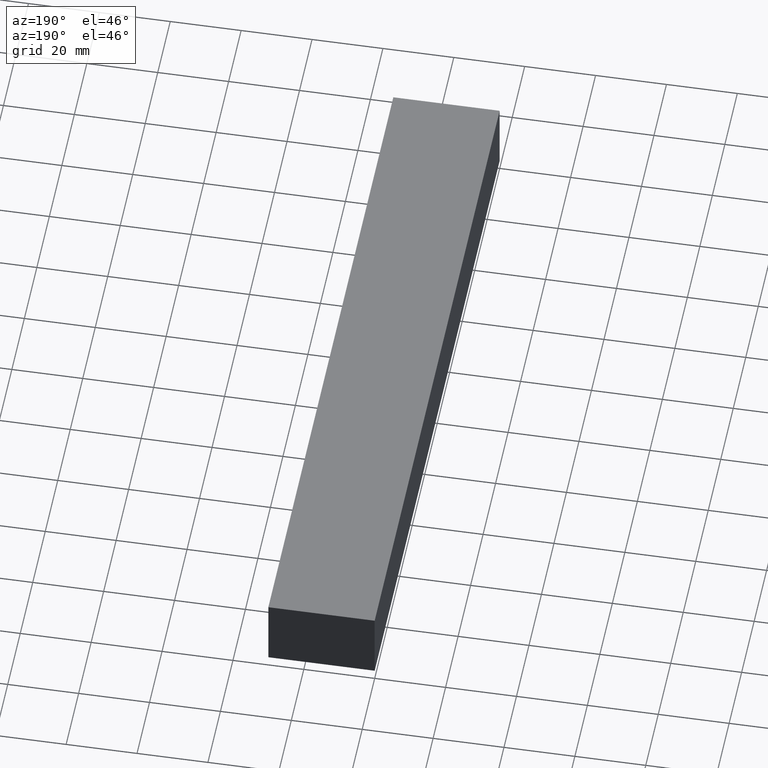
[diagram: clean part render]
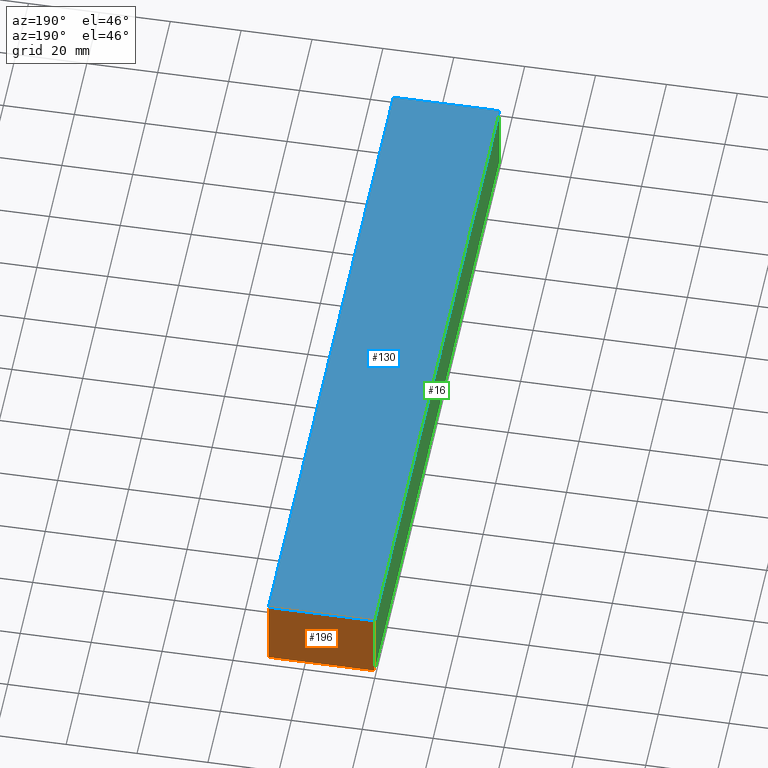
[diagram: same view with three faces highlighted in distinct colors, each labeled with its STEP entity id]
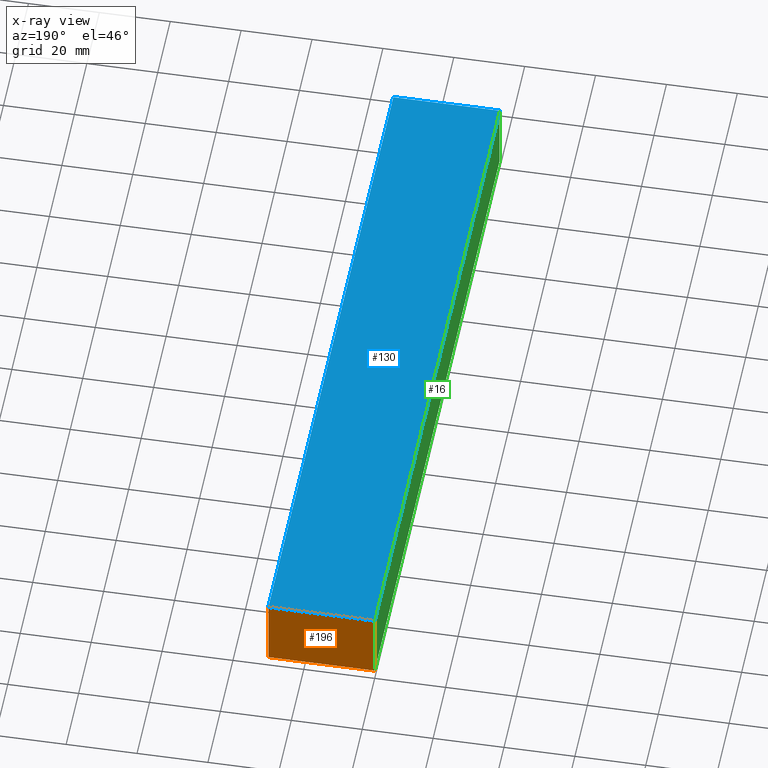
[diagram: x-ray of the same camera — body ghosted, the three highlighted faces saturated]
A machine part, auxiliary view with three faces highlighted in distinct colors.
The next image is the same camera in x-ray (body ghosted, the three faces saturated) — at least one of them is partly hidden behind the body in this view.
Their STEP definitions:

[orange] entity #196 — the highlighted planar face has unit normal (0, 1, 0).
#1 = DIRECTION ( 'NONE',  ( 0.0000000000000000000, 0.0000000000000000000, 1.000000000000000000 ) ) ;
#17 = VERTEX_POINT ( 'NONE', #234 ) ;
#19 = DIRECTION ( 'NONE',  ( 0.0000000000000000000, 1.000000000000000000, 0.0000000000000000000 ) ) ;
#21 = VERTEX_POINT ( 'NONE', #97 ) ;
#24 = ORIENTED_EDGE ( 'NONE', *, *, #200, .F. ) ;
#41 = VECTOR ( 'NONE', #185, 1000.000000000000000 ) ;
#51 = DIRECTION ( 'NONE',  ( -1.000000000000000000, 0.0000000000000000000, 0.0000000000000000000 ) ) ;
#57 = DIRECTION ( 'NONE',  ( 0.0000000000000000000, 0.0000000000000000000, 1.000000000000000000 ) ) ;
#90 = VECTOR ( 'NONE', #51, 1000.000000000000000 ) ;
#91 = LINE ( 'NONE', #150, #41 ) ;
#97 = CARTESIAN_POINT ( 'NONE',  ( 30.00000000000000000, 200.0000000000000000, 10.00000000000000000 ) ) ;
#98 = VERTEX_POINT ( 'NONE', #105 ) ;
#104 = FACE_OUTER_BOUND ( 'NONE', #224, .T. ) ;
#105 = CARTESIAN_POINT ( 'NONE',  ( 0.0000000000000000000, 200.0000000000000000, 10.00000000000000000 ) ) ;
#118 = CARTESIAN_POINT ( 'NONE',  ( 30.00000000000000000, 200.0000000000000000, -10.00000000000000000 ) ) ;
#129 = LINE ( 'NONE', #197, #142 ) ;
#139 = CARTESIAN_POINT ( 'NONE',  ( 0.0000000000000000000, 200.0000000000000000, -10.00000000000000000 ) ) ;
#142 = VECTOR ( 'NONE', #198, 1000.000000000000000 ) ;
#149 = ORIENTED_EDGE ( 'NONE', *, *, #217, .T. ) ;
#150 = CARTESIAN_POINT ( 'NONE',  ( 30.00000000000000000, 200.0000000000000000, 10.00000000000000000 ) ) ;
#152 = VECTOR ( 'NONE', #57, 1000.000000000000000 ) ;
#156 = VERTEX_POINT ( 'NONE', #139 ) ;
#157 = AXIS2_PLACEMENT_3D ( 'NONE', #199, #19, #1 ) ;
#159 = EDGE_CURVE ( 'NONE', #21, #98, #91, .T. ) ;
#167 = ORIENTED_EDGE ( 'NONE', *, *, #213, .T. ) ;
#169 = PLANE ( 'NONE',  #157 ) ;
#185 = DIRECTION ( 'NONE',  ( -1.000000000000000000, 0.0000000000000000000, 0.0000000000000000000 ) ) ;
#187 = ORIENTED_EDGE ( 'NONE', *, *, #159, .F. ) ;
#196 = ADVANCED_FACE ( 'NONE', ( #104 ), #169, .T. ) ;
#197 = CARTESIAN_POINT ( 'NONE',  ( 0.0000000000000000000, 200.0000000000000000, -10.00000000000000000 ) ) ;
#198 = DIRECTION ( 'NONE',  ( 0.0000000000000000000, 0.0000000000000000000, 1.000000000000000000 ) ) ;
#199 = CARTESIAN_POINT ( 'NONE',  ( 30.00000000000000000, 200.0000000000000000, -10.00000000000000000 ) ) ;
#200 = EDGE_CURVE ( 'NONE', #17, #21, #222, .T. ) ;
#213 = EDGE_CURVE ( 'NONE', #156, #98, #129, .T. ) ;
#214 = LINE ( 'NONE', #118, #90 ) ;
#217 = EDGE_CURVE ( 'NONE', #17, #156, #214, .T. ) ;
#222 = LINE ( 'NONE', #230, #152 ) ;
#224 = EDGE_LOOP ( 'NONE', ( #187, #24, #149, #167 ) ) ;
#230 = CARTESIAN_POINT ( 'NONE',  ( 30.00000000000000000, 200.0000000000000000, -10.00000000000000000 ) ) ;
#234 = CARTESIAN_POINT ( 'NONE',  ( 30.00000000000000000, 200.0000000000000000, -10.00000000000000000 ) ) ;

[blue] entity #130 — the highlighted planar face has unit normal (0, 0, 1).
#8 = LINE ( 'NONE', #63, #120 ) ;
#14 = DIRECTION ( 'NONE',  ( 1.000000000000000000, 0.0000000000000000000, 0.0000000000000000000 ) ) ;
#21 = VERTEX_POINT ( 'NONE', #97 ) ;
#23 = LINE ( 'NONE', #37, #108 ) ;
#28 = VECTOR ( 'NONE', #216, 1000.000000000000000 ) ;
#31 = CARTESIAN_POINT ( 'NONE',  ( 0.0000000000000000000, 0.0000000000000000000, 10.00000000000000000 ) ) ;
#35 = ORIENTED_EDGE ( 'NONE', *, *, #159, .T. ) ;
#37 = CARTESIAN_POINT ( 'NONE',  ( 0.0000000000000000000, 0.0000000000000000000, 10.00000000000000000 ) ) ;
#41 = VECTOR ( 'NONE', #185, 1000.000000000000000 ) ;
#63 = CARTESIAN_POINT ( 'NONE',  ( 30.00000000000000000, 0.0000000000000000000, 10.00000000000000000 ) ) ;
#73 = CARTESIAN_POINT ( 'NONE',  ( 0.0000000000000000000, 200.0000000000000000, 10.00000000000000000 ) ) ;
#75 = ORIENTED_EDGE ( 'NONE', *, *, #205, .T. ) ;
#91 = LINE ( 'NONE', #150, #41 ) ;
#94 = FACE_OUTER_BOUND ( 'NONE', #233, .T. ) ;
#97 = CARTESIAN_POINT ( 'NONE',  ( 30.00000000000000000, 200.0000000000000000, 10.00000000000000000 ) ) ;
#98 = VERTEX_POINT ( 'NONE', #105 ) ;
#103 = DIRECTION ( 'NONE',  ( 1.000000000000000000, 0.0000000000000000000, 0.0000000000000000000 ) ) ;
#105 = CARTESIAN_POINT ( 'NONE',  ( 0.0000000000000000000, 200.0000000000000000, 10.00000000000000000 ) ) ;
#108 = VECTOR ( 'NONE', #103, 1000.000000000000000 ) ;
#110 = AXIS2_PLACEMENT_3D ( 'NONE', #165, #148, #14 ) ;
#120 = VECTOR ( 'NONE', #219, 1000.000000000000000 ) ;
#130 = ADVANCED_FACE ( 'NONE', ( #94 ), #145, .T. ) ;
#137 = EDGE_CURVE ( 'NONE', #98, #138, #164, .T. ) ;
#138 = VERTEX_POINT ( 'NONE', #31 ) ;
#145 = PLANE ( 'NONE',  #110 ) ;
#148 = DIRECTION ( 'NONE',  ( 0.0000000000000000000, 0.0000000000000000000, 1.000000000000000000 ) ) ;
#150 = CARTESIAN_POINT ( 'NONE',  ( 30.00000000000000000, 200.0000000000000000, 10.00000000000000000 ) ) ;
#158 = EDGE_CURVE ( 'NONE', #138, #189, #23, .T. ) ;
#159 = EDGE_CURVE ( 'NONE', #21, #98, #91, .T. ) ;
#164 = LINE ( 'NONE', #73, #28 ) ;
#165 = CARTESIAN_POINT ( 'NONE',  ( 0.0000000000000000000, 0.0000000000000000000, 10.00000000000000000 ) ) ;
#180 = CARTESIAN_POINT ( 'NONE',  ( 30.00000000000000000, 0.0000000000000000000, 10.00000000000000000 ) ) ;
#185 = DIRECTION ( 'NONE',  ( -1.000000000000000000, 0.0000000000000000000, 0.0000000000000000000 ) ) ;
#188 = ORIENTED_EDGE ( 'NONE', *, *, #158, .T. ) ;
#189 = VERTEX_POINT ( 'NONE', #180 ) ;
#205 = EDGE_CURVE ( 'NONE', #189, #21, #8, .T. ) ;
#216 = DIRECTION ( 'NONE',  ( 0.0000000000000000000, -1.000000000000000000, 0.0000000000000000000 ) ) ;
#219 = DIRECTION ( 'NONE',  ( 0.0000000000000000000, 1.000000000000000000, 0.0000000000000000000 ) ) ;
#228 = ORIENTED_EDGE ( 'NONE', *, *, #137, .T. ) ;
#233 = EDGE_LOOP ( 'NONE', ( #228, #188, #75, #35 ) ) ;

[green] entity #16 — the highlighted planar face has unit normal (-1, 0, 0).
#11 = ORIENTED_EDGE ( 'NONE', *, *, #70, .T. ) ;
#12 = PLANE ( 'NONE',  #160 ) ;
#16 = ADVANCED_FACE ( 'NONE', ( #226 ), #12, .T. ) ;
#20 = DIRECTION ( 'NONE',  ( 0.0000000000000000000, 0.0000000000000000000, 1.000000000000000000 ) ) ;
#25 = VECTOR ( 'NONE', #155, 1000.000000000000000 ) ;
#28 = VECTOR ( 'NONE', #216, 1000.000000000000000 ) ;
#31 = CARTESIAN_POINT ( 'NONE',  ( 0.0000000000000000000, 0.0000000000000000000, 10.00000000000000000 ) ) ;
#40 = DIRECTION ( 'NONE',  ( 0.0000000000000000000, 0.0000000000000000000, 1.000000000000000000 ) ) ;
#43 = CARTESIAN_POINT ( 'NONE',  ( 0.0000000000000000000, 0.0000000000000000000, -10.00000000000000000 ) ) ;
#50 = VERTEX_POINT ( 'NONE', #99 ) ;
#70 = EDGE_CURVE ( 'NONE', #156, #50, #128, .T. ) ;
#71 = EDGE_LOOP ( 'NONE', ( #176, #126, #11, #182 ) ) ;
#73 = CARTESIAN_POINT ( 'NONE',  ( 0.0000000000000000000, 200.0000000000000000, 10.00000000000000000 ) ) ;
#92 = VECTOR ( 'NONE', #20, 1000.000000000000000 ) ;
#98 = VERTEX_POINT ( 'NONE', #105 ) ;
#99 = CARTESIAN_POINT ( 'NONE',  ( 0.0000000000000000000, 0.0000000000000000000, -10.00000000000000000 ) ) ;
#105 = CARTESIAN_POINT ( 'NONE',  ( 0.0000000000000000000, 200.0000000000000000, 10.00000000000000000 ) ) ;
#115 = DIRECTION ( 'NONE',  ( -1.000000000000000000, 0.0000000000000000000, 0.0000000000000000000 ) ) ;
#126 = ORIENTED_EDGE ( 'NONE', *, *, #213, .F. ) ;
#127 = EDGE_CURVE ( 'NONE', #50, #138, #153, .T. ) ;
#128 = LINE ( 'NONE', #172, #25 ) ;
#129 = LINE ( 'NONE', #197, #142 ) ;
#137 = EDGE_CURVE ( 'NONE', #98, #138, #164, .T. ) ;
#138 = VERTEX_POINT ( 'NONE', #31 ) ;
#139 = CARTESIAN_POINT ( 'NONE',  ( 0.0000000000000000000, 200.0000000000000000, -10.00000000000000000 ) ) ;
#142 = VECTOR ( 'NONE', #198, 1000.000000000000000 ) ;
#153 = LINE ( 'NONE', #43, #92 ) ;
#155 = DIRECTION ( 'NONE',  ( 0.0000000000000000000, -1.000000000000000000, 0.0000000000000000000 ) ) ;
#156 = VERTEX_POINT ( 'NONE', #139 ) ;
#160 = AXIS2_PLACEMENT_3D ( 'NONE', #171, #115, #40 ) ;
#164 = LINE ( 'NONE', #73, #28 ) ;
#171 = CARTESIAN_POINT ( 'NONE',  ( 0.0000000000000000000, 200.0000000000000000, -10.00000000000000000 ) ) ;
#172 = CARTESIAN_POINT ( 'NONE',  ( 0.0000000000000000000, 200.0000000000000000, -10.00000000000000000 ) ) ;
#176 = ORIENTED_EDGE ( 'NONE', *, *, #137, .F. ) ;
#182 = ORIENTED_EDGE ( 'NONE', *, *, #127, .T. ) ;
#197 = CARTESIAN_POINT ( 'NONE',  ( 0.0000000000000000000, 200.0000000000000000, -10.00000000000000000 ) ) ;
#198 = DIRECTION ( 'NONE',  ( 0.0000000000000000000, 0.0000000000000000000, 1.000000000000000000 ) ) ;
#213 = EDGE_CURVE ( 'NONE', #156, #98, #129, .T. ) ;
#216 = DIRECTION ( 'NONE',  ( 0.0000000000000000000, -1.000000000000000000, 0.0000000000000000000 ) ) ;
#226 = FACE_OUTER_BOUND ( 'NONE', #71, .T. ) ;